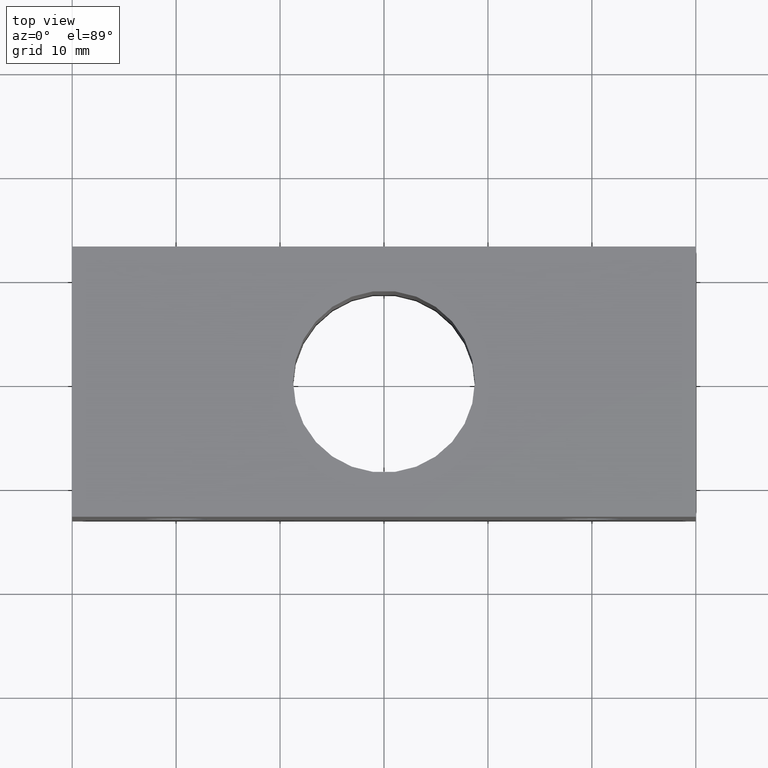
[diagram: clean part render]
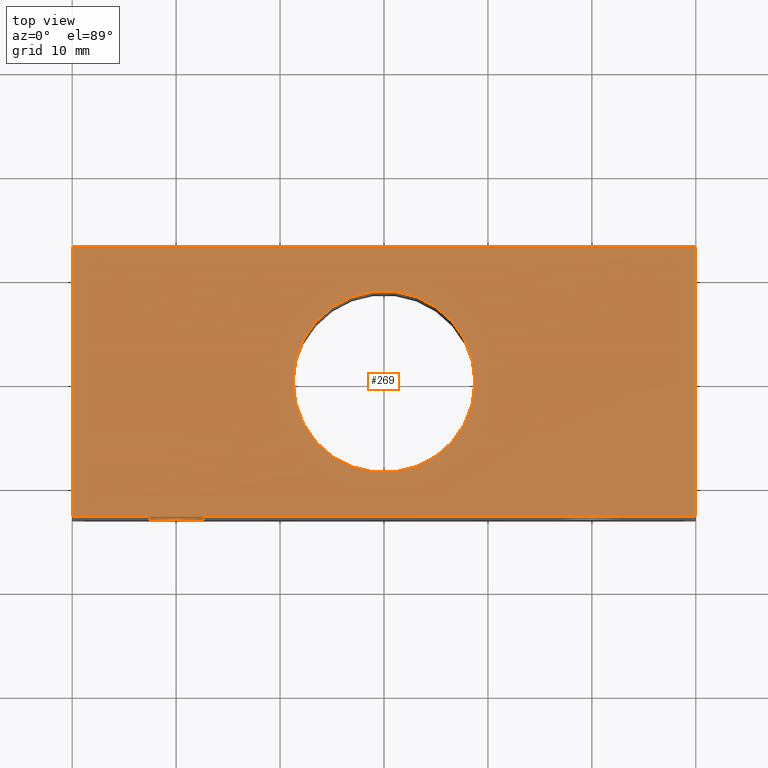
[diagram: same view with one face highlighted and labeled with its STEP entity id]
A machine part, top view. The second image highlights one B-rep face of the part: STEP entity #269.
In plain terms, the highlighted planar face has unit normal (0, 0, 1).
Its self-contained STEP definition (entity closure, byte-faithful):
#17=CARTESIAN_POINT('',(30.000000000000114,13.0,13.0));
#18=VERTEX_POINT('',#17);
#25=CARTESIAN_POINT('',(30.000000000000114,-13.0,13.0));
#26=VERTEX_POINT('',#25);
#27=CARTESIAN_POINT('',(30.000000000000114,-13.0,13.0));
#28=DIRECTION('',(0.0,1.0,0.0));
#29=VECTOR('',#28,26.0);
#30=LINE('',#27,#29);
#31=EDGE_CURVE('',#26,#18,#30,.T.);
#55=CARTESIAN_POINT('',(-30.0,13.0,13.0));
#56=VERTEX_POINT('',#55);
#63=CARTESIAN_POINT('',(30.000000000000114,13.0,13.0));
#64=DIRECTION('',(-1.0,0.0,0.0));
#65=VECTOR('',#64,60.000000000000114);
#66=LINE('',#63,#65);
#67=EDGE_CURVE('',#18,#56,#66,.T.);
#126=CARTESIAN_POINT('',(-30.0,-13.0,13.0));
#127=VERTEX_POINT('',#126);
#134=CARTESIAN_POINT('',(-30.0,13.0,13.0));
#135=DIRECTION('',(0.0,-1.0,0.0));
#136=VECTOR('',#135,26.0);
#137=LINE('',#134,#136);
#138=EDGE_CURVE('',#56,#127,#137,.T.);
#150=CARTESIAN_POINT('',(-30.0,-13.0,13.0));
#151=DIRECTION('',(1.0,0.0,0.0));
#152=VECTOR('',#151,60.000000000000114);
#153=LINE('',#150,#152);
#154=EDGE_CURVE('',#127,#26,#153,.T.);
#238=CARTESIAN_POINT('',(-36.000120001825735,-15.600120001972186,13.0));
#239=DIRECTION('',(0.0,0.0,1.0));
#240=DIRECTION('',(1.0,0.0,0.0));
#241=AXIS2_PLACEMENT_3D('',#238,#239,#240);
#242=PLANE('',#241);
#243=ORIENTED_EDGE('',*,*,#31,.T.);
#244=ORIENTED_EDGE('',*,*,#67,.T.);
#245=ORIENTED_EDGE('',*,*,#138,.T.);
#246=ORIENTED_EDGE('',*,*,#154,.T.);
#247=EDGE_LOOP('',(#243,#244,#245,#246));
#248=FACE_OUTER_BOUND('',#247,.T.);
#249=CARTESIAN_POINT('',(-8.750000000000000,0.0,13.0));
#250=VERTEX_POINT('',#249);
#251=CARTESIAN_POINT('',(8.750000000000000,0.0,13.0));
#252=VERTEX_POINT('',#251);
#253=CARTESIAN_POINT('',(0.0,0.0,13.0));
#254=DIRECTION('',(0.0,0.0,1.0));
#255=DIRECTION('',(1.0,0.0,0.0));
#256=AXIS2_PLACEMENT_3D('',#253,#254,#255);
#257=CIRCLE('',#256,8.750000000000000);
#258=EDGE_CURVE('',#250,#252,#257,.T.);
#259=ORIENTED_EDGE('',*,*,#258,.F.);
#260=CARTESIAN_POINT('',(0.0,0.0,13.0));
#261=DIRECTION('',(0.0,0.0,1.0));
#262=DIRECTION('',(1.0,0.0,0.0));
#263=AXIS2_PLACEMENT_3D('',#260,#261,#262);
#264=CIRCLE('',#263,8.750000000000000);
#265=EDGE_CURVE('',#252,#250,#264,.T.);
#266=ORIENTED_EDGE('',*,*,#265,.F.);
#267=EDGE_LOOP('',(#259,#266));
#268=FACE_BOUND('',#267,.T.);
#269=ADVANCED_FACE('',(#248,#268),#242,.T.);